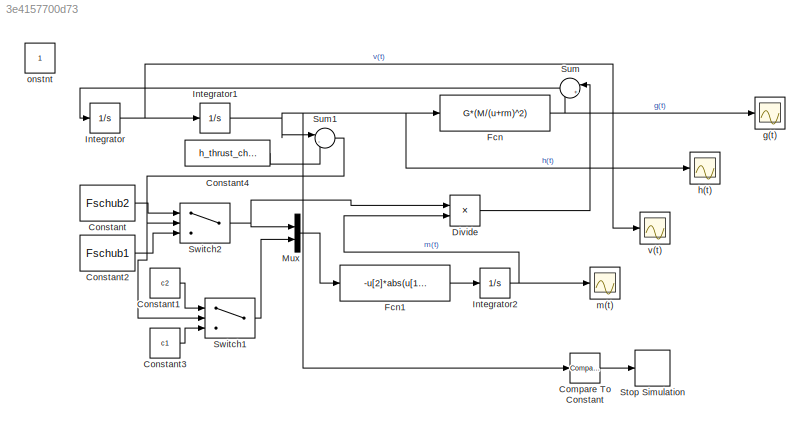
MODEL slx_3e4157700d73
KIND model
CONFIG AbsTol = auto
CONFIG EnableMultiTasking = off
CONFIG FixedStep = 0.1
CONFIG MaxStep = 0.1
CONFIG MinStep = auto
CONFIG RelTol = 1e-3
CONFIG SampleTimeConstraint = Unconstrained
CONFIG Solver = ode1
CONFIG SolverName = ode1
CONFIG StartTime = 0.0
CONFIG StopTime = 100
BLOCK [Reference] Compare To Constant  REF=simulink/Logic and Bit
Operations/Compare
To Constant
  Ports = [1, 1]
  SourceBlock = simulink/Logic and Bit\nOperations/Compare\nTo Constant
  SourceProductBaseCode = SL
  SourceProductName = Simulink
  SourceType = Compare To Constant
BLOCK [Constant] Constant
  Value = Fschub2
BLOCK [Constant] Constant1
  Value = c2
BLOCK [Constant] Constant2
  Value = Fschub1
BLOCK [Constant] Constant3
  Value = c1
BLOCK [Constant] Constant4
  Value = h_thrust_change
BLOCK [Product] Divide
  InputSameDT = off
  Inputs = */
  OutDataTypeStr = Inherit: Inherit via internal rule
  Ports = [2, 1]
  RndMeth = Floor
  SaturateOnIntegerOverflow = off
BLOCK [Fcn] Fcn
  Expr = G*(M/(u+rm)^2)
BLOCK [Fcn] Fcn1
  Expr = -u[2]*abs(u[1])
BLOCK [Integrator] Integrator
  InitialCondition = x2
  Ports = [1, 1]
BLOCK [Integrator] Integrator1
  InitialCondition = x1
  LowerSaturationLimit = 0
  Ports = [1, 1]
BLOCK [Integrator] Integrator2
  InitialCondition = x3
  LowerSaturationLimit = 0
  Ports = [1, 1]
BLOCK [Mux] Mux
  DisplayOption = bar
  Inputs = 2
  Ports = [2, 1]
BLOCK [Stop] Stop Simulation
BLOCK [Sum] Sum
  IconShape = round
  InputSameDT = off
  Inputs = |+-
  OutDataTypeStr = Inherit: Inherit via internal rule
  Ports = [2, 1]
  SaturateOnIntegerOverflow = off
BLOCK [Sum] Sum1
  IconShape = round
  InputSameDT = off
  Inputs = |-+
  OutDataTypeStr = Inherit: Inherit via internal rule
  Ports = [2, 1]
  SaturateOnIntegerOverflow = off
BLOCK [Switch] Switch1
  Criteria = u2 > Threshold
  InputSameDT = off
  SaturateOnIntegerOverflow = off
BLOCK [Switch] Switch2
  InputSameDT = off
  SaturateOnIntegerOverflow = off
BLOCK [Scope] g(t)
  Floating = off
  NumInputPorts = 1
  Ports = [1]
  ScopeSpecificationString = Simulink.scopes.TimeScopeBlockCfg('CurrentConfiguration', extmgr.ConfigurationSet(extmgr.Configuration('Core','General UI',true),extmgr.Configuration('Core','Source UI',true),extmgr.Configuration('Sources','WiredSimulink',true),extmgr.Configuration('Visuals','Time Domain',true,'SerializedDisplays',{struct('MinYLimReal','1.50429','MaxYLimReal','1.63619','YLabelReal','','MinYLimMag','1.50429','MaxYL...<+1375ch>
BLOCK [Scope] h(t)
  Floating = off
  NumInputPorts = 1
  Ports = [1]
  ScopeSpecificationString = Simulink.scopes.TimeScopeBlockCfg('CurrentConfiguration', extmgr.ConfigurationSet(extmgr.Configuration('Core','General UI',true),extmgr.Configuration('Core','Source UI',true),extmgr.Configuration('Sources','WiredSimulink',true,'DataLoggingVariableName','ScopeData1'),extmgr.Configuration('Visuals','Time Domain',true,'SerializedDisplays',{struct('MinYLimReal','-7437.63677','MaxYLimReal','66830.84853...<+1442ch>
BLOCK [Scope] m(t)
  Floating = off
  NumInputPorts = 1
  Ports = [1]
  ScopeSpecificationString = Simulink.scopes.TimeScopeBlockCfg('CurrentConfiguration', extmgr.ConfigurationSet(extmgr.Configuration('Core','General UI',true),extmgr.Configuration('Core','Source UI',true),extmgr.Configuration('Sources','WiredSimulink',true,'DataLoggingVariableName','ScopeData3'),extmgr.Configuration('Visuals','Time Domain',true,'SerializedDisplays',{struct('MinYLimReal','434.44122','MaxYLimReal','1105.45986','...<+1434ch>
BLOCK [Constant] onstnt
  IOType = siggen
BLOCK [Scope] v(t)
  Floating = off
  NumInputPorts = 1
  Ports = [1]
  ScopeSpecificationString = Simulink.scopes.TimeScopeBlockCfg('CurrentConfiguration', extmgr.ConfigurationSet(extmgr.Configuration('Core','General UI',true),extmgr.Configuration('Core','Source UI',true),extmgr.Configuration('Sources','WiredSimulink',true,'DataLoggingVariableName','ScopeData2'),extmgr.Configuration('Visuals','Time Domain',true,'SerializedDisplays',{struct('MinYLimReal','-2219.72864','MaxYLimReal','-52.44221',...<+1436ch>
LINE Compare To Constant:1 -> Stop Simulation:1
LINE Constant1:1 -> Switch1:1
LINE Constant2:1 -> Switch2:3
LINE Constant3:1 -> Switch1:3
LINE Constant4:1 -> Sum1:2
LINE Constant:1 -> Switch2:1
LINE Divide:1 -> Sum:1
LINE Fcn1:1 -> Integrator2:1
NET Fcn:1 -> Sum:2, g(t):1
NET Integrator1:1 -> Compare To Constant:1, Fcn:1, Sum1:1, h(t):1
NET Integrator2:1 -> Divide:2, m(t):1
NET Integrator:1 -> Integrator1:1, v(t):1
LINE Mux:1 -> Fcn1:1
NET Sum1:1 -> Switch1:2, Switch2:2
LINE Sum:1 -> Integrator:1
LINE Switch1:1 -> Mux:2
NET Switch2:1 -> Divide:1, Mux:1
note: NET lines group one-source signal fan-out (src -> all destinations, sorted); 1:1 wires keep LINE
